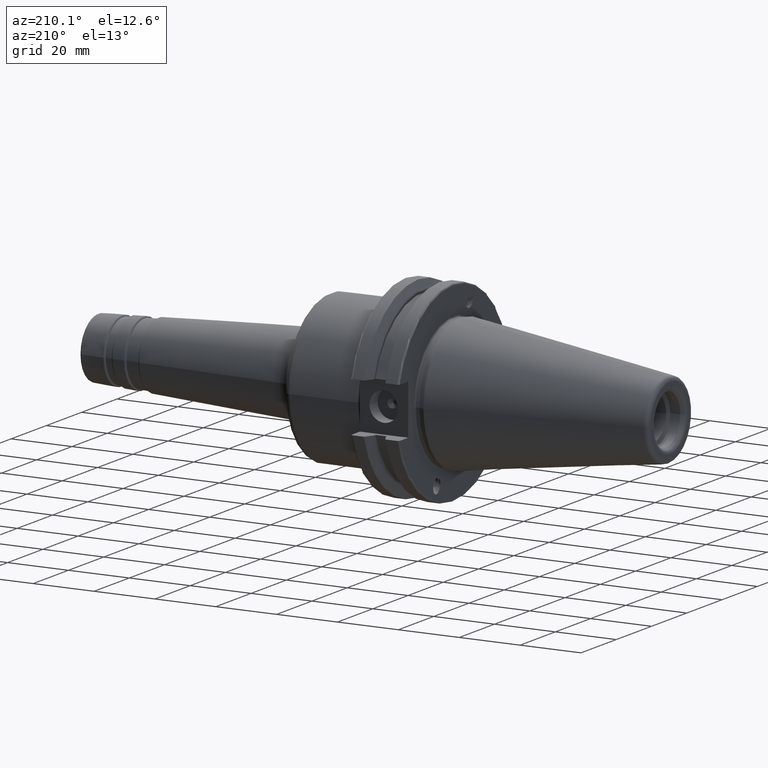
[diagram: clean part render]
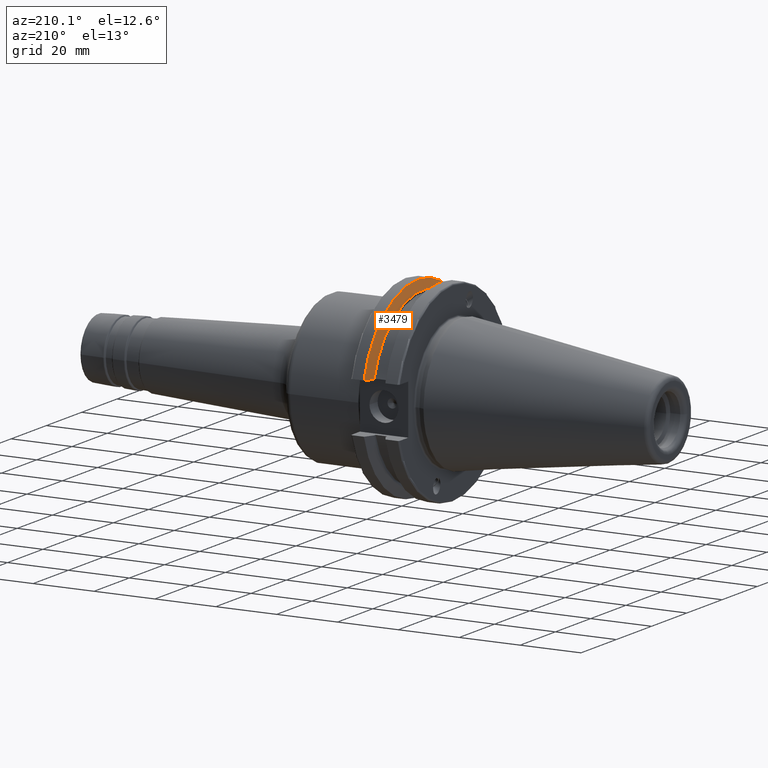
[diagram: same view with one face highlighted and labeled with its STEP entity id]
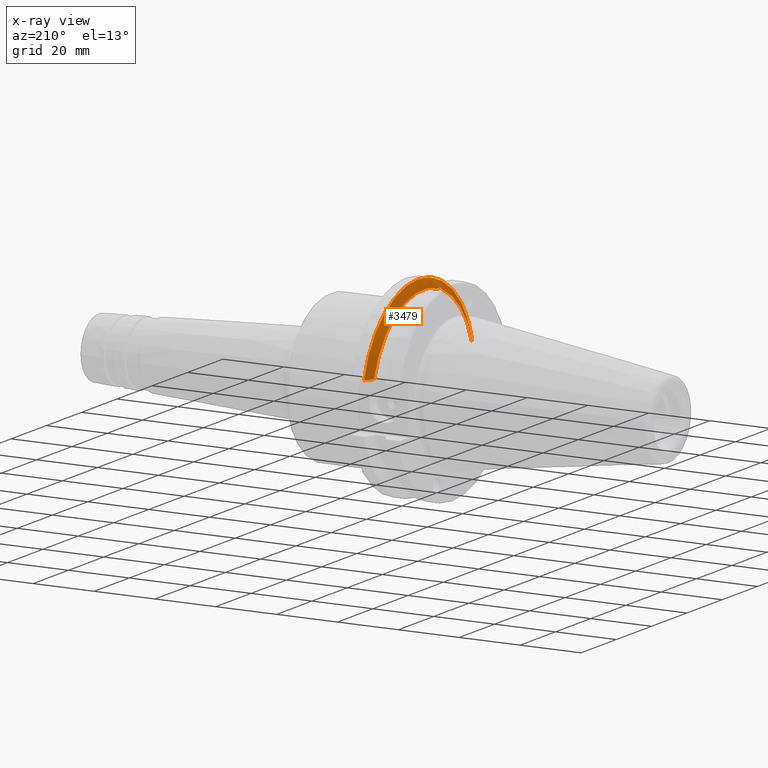
[diagram: x-ray of the same camera — body ghosted, the highlighted face saturated]
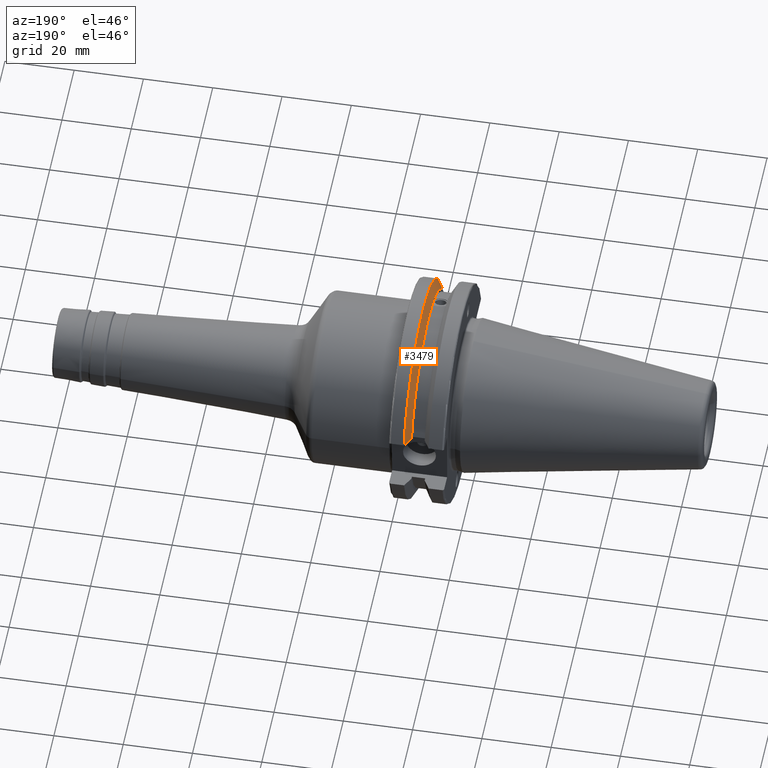
[diagram: same view with one face highlighted and labeled with its STEP entity id]
A machine part, auxiliary view. The second image highlights one B-rep face of the part: STEP entity #3479.
The next image is the same camera in x-ray: the body ghosted, the highlighted face saturated — about 5% of this face is hidden behind the body in this view.
A second angle (auxiliary view) of the same face is appended — the face is thin or edge-on in the first view.
In plain terms, the highlighted conical surface has half-angle 60 deg.
Its self-contained STEP definition (entity closure, byte-faithful):
#864=CARTESIAN_POINT('',(5.218145295210E-1,-3.940274933138E-1,
1.082581640524E0));
#865=CARTESIAN_POINT('',(5.218145295210E-1,-3.979456667109E-1,
1.081155542035E0));
#866=CARTESIAN_POINT('',(5.211913632951E-1,-4.052598212806E-1,
1.077296971388E0));
#867=CARTESIAN_POINT('',(5.184926986163E-1,-4.146827834078E-1,
1.068689715044E0));
#868=CARTESIAN_POINT('',(5.158128267767E-1,-4.195947735707E-1,
1.061766850634E0));
#869=CARTESIAN_POINT('',(5.142747283333E-1,-4.217967462294E-1,
1.058021032338E0));
#871=CARTESIAN_POINT('',(5.142747283333E-1,-3.569677568001E-1,
1.081616854808E0));
#872=CARTESIAN_POINT('',(5.158484714695E-1,-3.611572211059E-1,
1.083104614558E0));
#873=CARTESIAN_POINT('',(5.185613948014E-1,-3.695116032110E-1,
1.085262398399E0));
#874=CARTESIAN_POINT('',(5.212230857192E-1,-3.822721455366E-1,
1.085724705577E0));
#875=CARTESIAN_POINT('',(5.218145295210E-1,-3.902073578925E-1,
1.083972056108E0));
#876=CARTESIAN_POINT('',(5.218145295210E-1,-3.940274933138E-1,
1.082581640524E0));
#878=CARTESIAN_POINT('',(5.142747283333E-1,0.E0,0.E0));
#879=DIRECTION('',(-1.E0,0.E0,0.E0));
#880=DIRECTION('',(0.E0,-3.134045274803E-1,9.496197144936E-1));
#881=AXIS2_PLACEMENT_3D('',#878,#879,#880);
#883=CARTESIAN_POINT('',(5.783606082134E-1,1.207814555302E0,3.22E-1));
#884=CARTESIAN_POINT('',(5.710198121646E-1,1.194655838523E0,3.22E-1));
#885=CARTESIAN_POINT('',(5.564845126145E-1,1.168572105831E0,3.22E-1));
#886=CARTESIAN_POINT('',(5.351233411478E-1,1.130149455452E0,3.22E-1));
#887=CARTESIAN_POINT('',(5.211751555975E-1,1.104997132495E0,3.22E-1));
#888=CARTESIAN_POINT('',(5.142747283333E-1,1.092536955897E0,3.22E-1));
#890=CARTESIAN_POINT('',(5.783606082134E-1,0.E0,0.E0));
#891=DIRECTION('',(1.E0,0.E0,0.E0));
#892=DIRECTION('',(0.E0,9.662516442418E-1,2.576E-1));
#893=AXIS2_PLACEMENT_3D('',#890,#891,#892);
#895=CARTESIAN_POINT('',(5.142747283333E-1,-1.092536955897E0,3.22E-1));
#896=CARTESIAN_POINT('',(5.211719112222E-1,-1.104991274092E0,3.22E-1));
#897=CARTESIAN_POINT('',(5.351157559636E-1,-1.130135790249E0,3.22E-1));
#898=CARTESIAN_POINT('',(5.564767677481E-1,-1.168558196488E0,3.22E-1));
#899=CARTESIAN_POINT('',(5.710164874275E-1,-1.194649878777E0,3.22E-1));
#900=CARTESIAN_POINT('',(5.783606082134E-1,-1.207814555302E0,3.22E-1));
#902=CARTESIAN_POINT('',(5.142747283333E-1,0.E0,0.E0));
#903=DIRECTION('',(-1.E0,0.E0,0.E0));
#904=DIRECTION('',(0.E0,-9.592071605765E-1,2.827041264267E-1));
#905=AXIS2_PLACEMENT_3D('',#902,#903,#904);
#2248=CARTESIAN_POINT('',(5.142747283333E-1,1.092536955897E0,3.22E-1));
#2249=VERTEX_POINT('',#2248);
#2252=VERTEX_POINT('',#883);
#2274=CARTESIAN_POINT('',(5.142747283333E-1,-1.092536955897E0,3.22E-1));
#2275=VERTEX_POINT('',#2274);
#2278=VERTEX_POINT('',#900);
#2546=CARTESIAN_POINT('',(5.218145295210E-1,-3.940274933138E-1,
1.082581640524E0));
#2547=VERTEX_POINT('',#2546);
#2562=CARTESIAN_POINT('',(5.142747283333E-1,-4.217967462294E-1,
1.058021032338E0));
#2563=VERTEX_POINT('',#2562);
#2564=CARTESIAN_POINT('',(5.142747283333E-1,-3.569677568001E-1,
1.081616854808E0));
#2565=VERTEX_POINT('',#2564);
#3461=CARTESIAN_POINT('',(5.463176682733E-1,0.E0,0.E0));
#3462=DIRECTION('',(1.E0,0.E0,0.E0));
#3463=DIRECTION('',(0.E0,0.E0,1.E0));
#3464=AXIS2_PLACEMENT_3D('',#3461,#3462,#3463);
#3465=CONICAL_SURFACE('',#3464,1.1945E0,6.E1);
#3467=ORIENTED_EDGE('',*,*,#3466,.F.);
#3469=ORIENTED_EDGE('',*,*,#3468,.F.);
#3470=ORIENTED_EDGE('',*,*,#3441,.T.);
#3472=ORIENTED_EDGE('',*,*,#3471,.F.);
#3473=ORIENTED_EDGE('',*,*,#2843,.T.);
#3475=ORIENTED_EDGE('',*,*,#3474,.F.);
#3476=ORIENTED_EDGE('',*,*,#3423,.T.);
#3477=EDGE_LOOP('',(#3467,#3469,#3470,#3472,#3473,#3475,#3476));
#3478=FACE_OUTER_BOUND('',#3477,.F.);
#3479=ADVANCED_FACE('',(#3478),#3465,.T.);
#870=B_SPLINE_CURVE_WITH_KNOTS('',3,(#864,#865,#866,#867,#868,#869),
.UNSPECIFIED.,.F.,.F.,(4,1,1,4),(0.E0,3.333333333333E-1,6.666666666667E-1,1.E0),
.UNSPECIFIED.);
#877=B_SPLINE_CURVE_WITH_KNOTS('',3,(#871,#872,#873,#874,#875,#876),
.UNSPECIFIED.,.F.,.F.,(4,1,1,4),(0.E0,3.333333333333E-1,6.666666666667E-1,1.E0),
.UNSPECIFIED.);
#882=CIRCLE('',#881,1.139E0);
#889=B_SPLINE_CURVE_WITH_KNOTS('',3,(#883,#884,#885,#886,#887,#888),
.UNSPECIFIED.,.F.,.F.,(4,1,1,4),(0.E0,3.333333333333E-1,6.666666666667E-1,1.E0),
.UNSPECIFIED.);
#894=CIRCLE('',#893,1.25E0);
#901=B_SPLINE_CURVE_WITH_KNOTS('',3,(#895,#896,#897,#898,#899,#900),
.UNSPECIFIED.,.F.,.F.,(4,1,1,4),(0.E0,3.333333333333E-1,6.666666666667E-1,1.E0),
.UNSPECIFIED.);
#906=CIRCLE('',#905,1.139E0);
#2843=EDGE_CURVE('',#2252,#2278,#894,.T.);
#3423=EDGE_CURVE('',#2275,#2563,#906,.T.);
#3441=EDGE_CURVE('',#2565,#2249,#882,.T.);
#3466=EDGE_CURVE('',#2547,#2563,#870,.T.);
#3468=EDGE_CURVE('',#2565,#2547,#877,.T.);
#3471=EDGE_CURVE('',#2252,#2249,#889,.T.);
#3474=EDGE_CURVE('',#2275,#2278,#901,.T.);